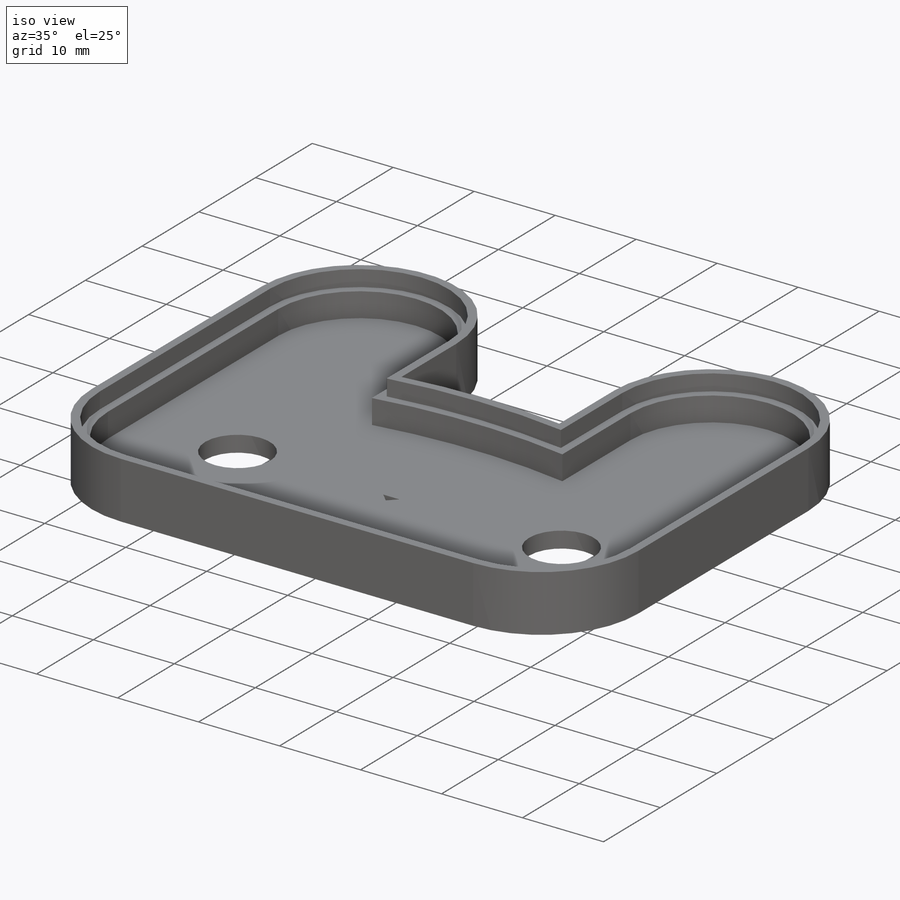
[diagram: iso view]
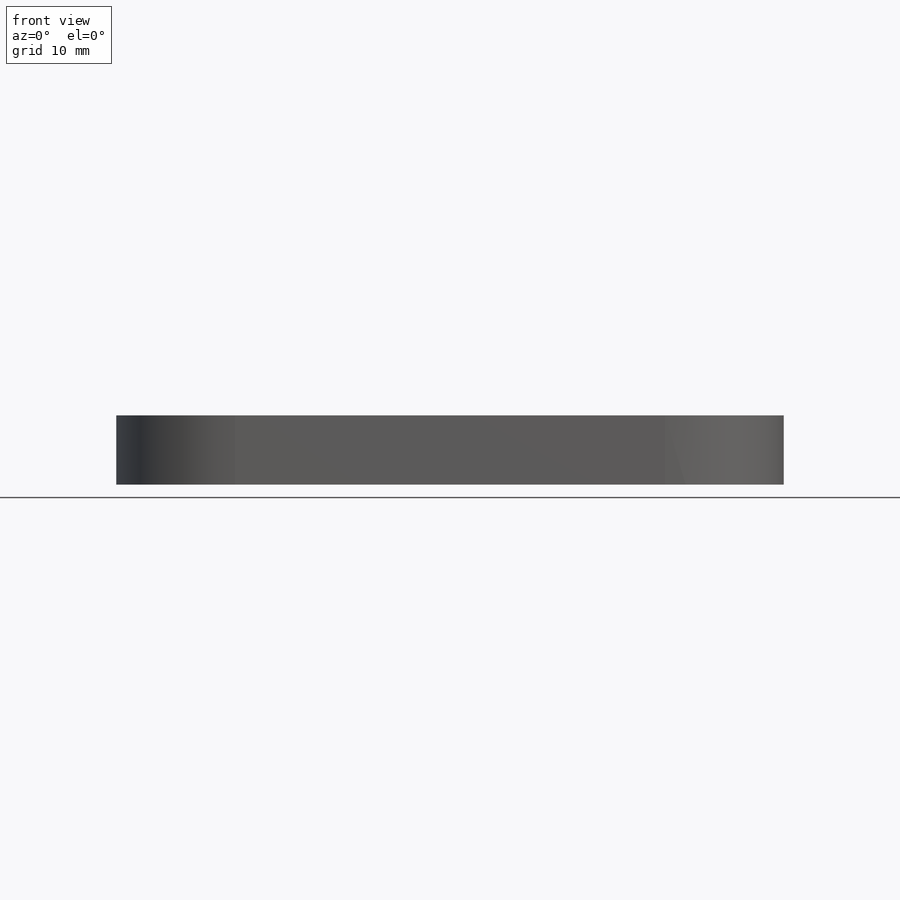
[diagram: front view]
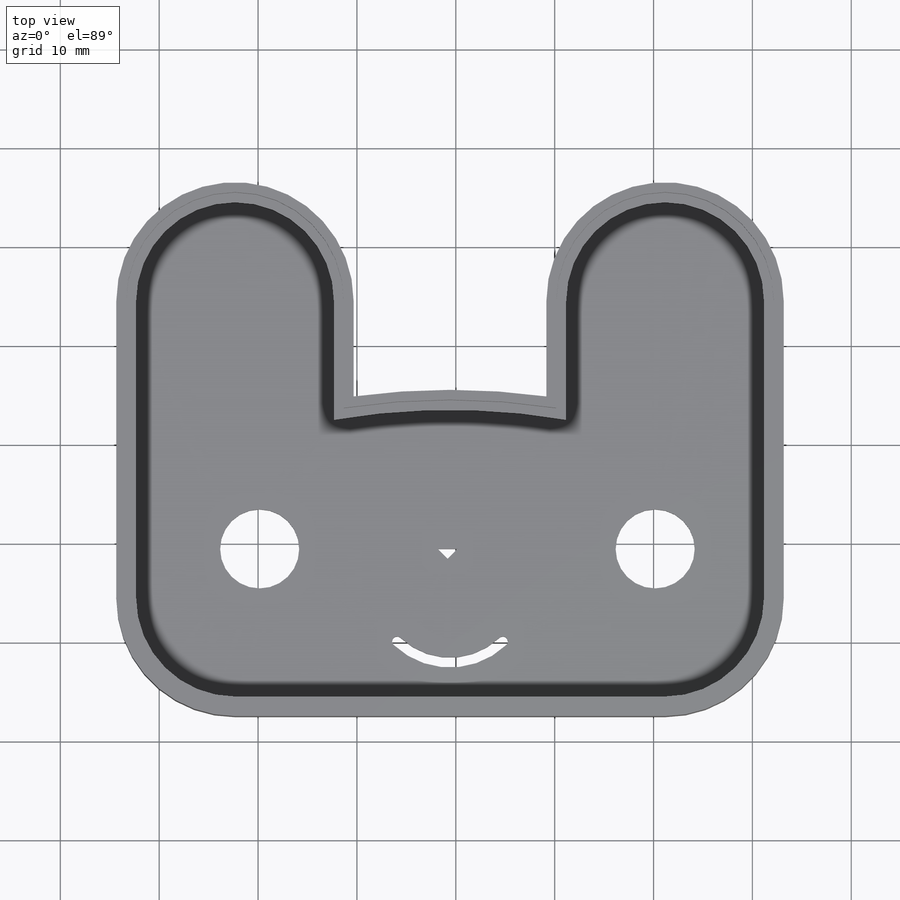
[diagram: top view]
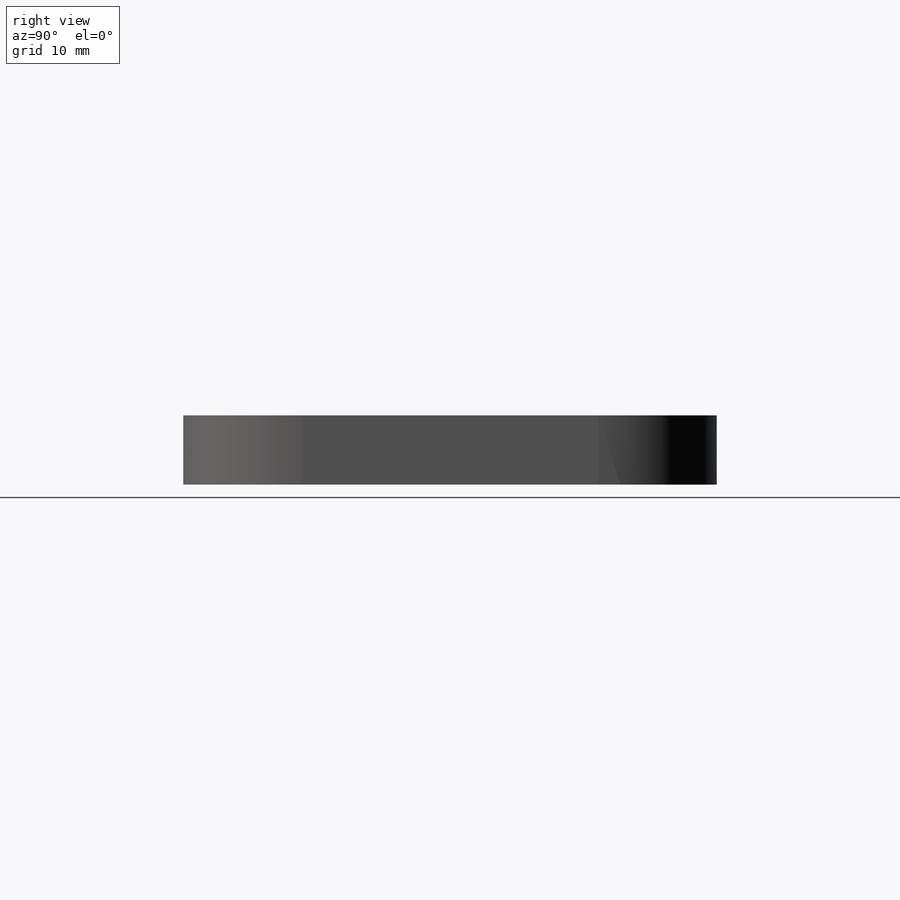
[diagram: right view]
SOLIDWORKS PART (.sldprt)
format: sldprt  version: not decoded by parser v0  size: 299,520 bytes
history: native  units: mm
features: sketch x4, plane x3, extrude x3, material x1, cut_extrude x1 (+10 scaffold rows collapsed)
feature tree (22):
  scaffold x10  (default folders/planes/origin — collapsed)
  material  "材质 <未指定>"
  plane  "前视基准面"
  plane  "上视基准面"
  plane  "右视基准面"
  sketch  "草图1"
  extrude  "凸台-拉伸1"  Depth=2mm
  extrude  "凸台-拉伸2"  [1 undecoded]
  sketch  "草图1<3>"  dims[D1=5.0mm]
  extrude  "凸台-拉伸3"  [1 undecoded]
  sketch  "草图1<4>"  dims[D1=7.0mm]
  sketch  "草图2"  dims[c1.D3=12.0mm c1.D4=1.0mm c1.D5=1.0mm c1.D6=1.0mm c2.D6=45.0deg c2.D7=1.0mm c3.D7=45.0deg c3.D9=10.0mm c3.D10=~1.034441mm c4.D10=90.0deg c5.D10=0.0mm c5.D14=13.0mm c5.D3=13.0mm c6.D14=30.0mm c6.D2=14.5mm c6.D3=13.0mm c7.D14=40.0mm c7.D15=14.0mm c7.D6=1.0mm c7.D1=17.0mm c7.D2=13.0mm c7.D8=9.0mm c7.D10=2.0mm c7.D11=1.0mm c7.D12=0.5mm c7.D13=0.5mm]
  cut_extrude  "切除-拉伸1"  Depth=9mm
decode coverage: 5 of 8 modeling features carry decoded parameters
note: ~ marks probable driven/reference dimensions
note: 2 parameter values undecoded
note: suppression state not decoded; provenance and decode notes live in map.json
